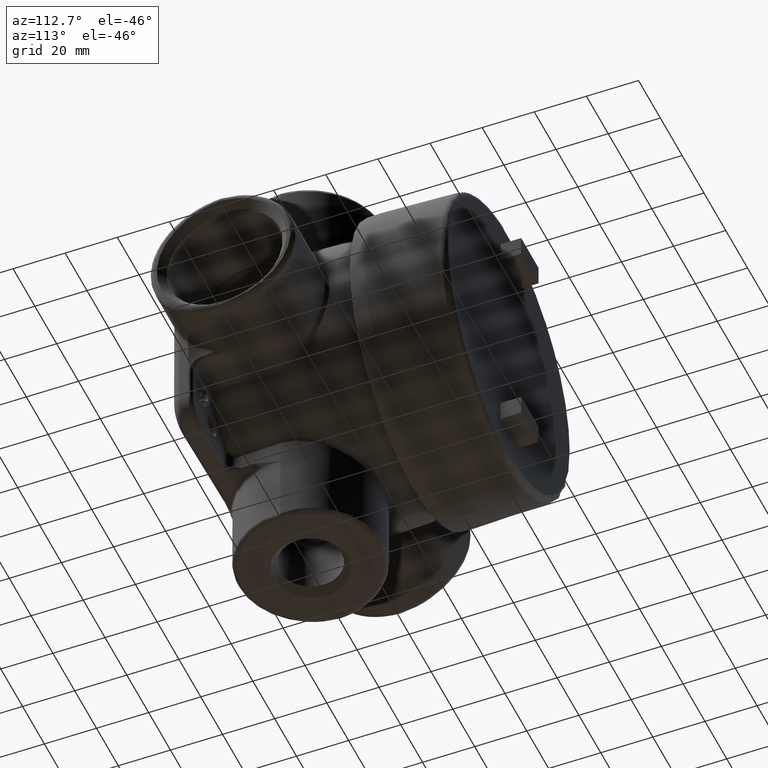
[diagram: clean part render]
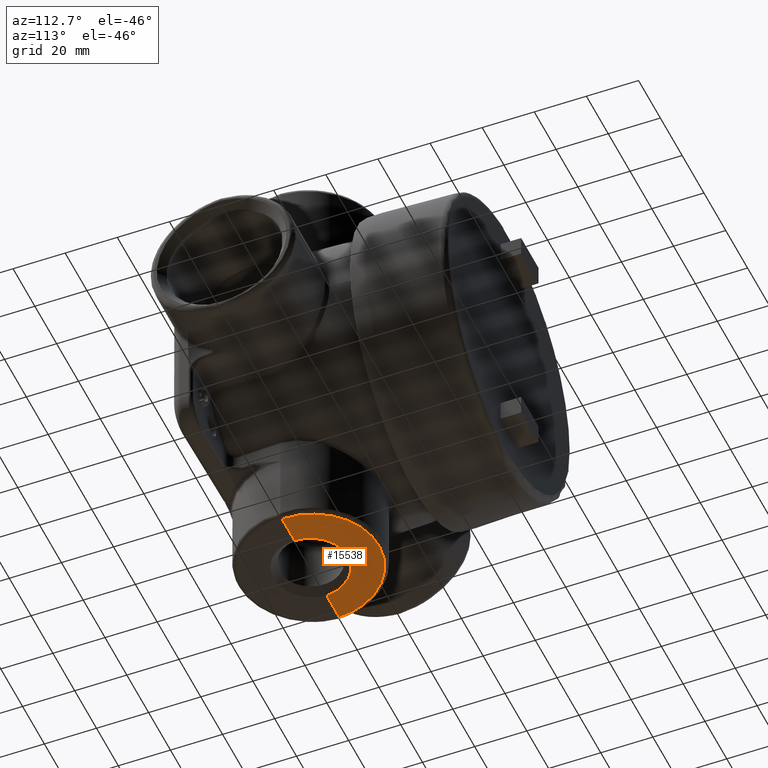
[diagram: same view with one face highlighted and labeled with its STEP entity id]
A machine part, auxiliary view. The second image highlights one B-rep face of the part: STEP entity #15538.
In plain terms, the highlighted planar face has unit normal (-0, -0.0349, 0.9994).
Its self-contained STEP definition (entity closure, byte-faithful):
#268=PLANE('',#16713);
#940=LINE('',#53334,#2259);
#941=LINE('',#53337,#2260);
#2259=VECTOR('',#18526,0.393700787401575);
#2260=VECTOR('',#18529,0.393700787401575);
#3604=FACE_OUTER_BOUND('',#4543,.T.);
#4543=EDGE_LOOP('',(#11595,#11596,#11597,#11598,#11599));
#5914=ELLIPSE('',#16706,0.58056120216713,0.579853662066613);
#5915=ELLIPSE('',#16709,0.58056120216713,0.579853662066613);
#5917=ELLIPSE('',#16714,1.03212874494423,1.0315);
#6844=VERTEX_POINT('',#53313);
#6845=VERTEX_POINT('',#53314);
#6846=VERTEX_POINT('',#53316);
#6851=VERTEX_POINT('',#53333);
#6852=VERTEX_POINT('',#53335);
#8623=EDGE_CURVE('',#6846,#6844,#5914,.T.);
#8627=EDGE_CURVE('',#6845,#6846,#5915,.T.);
#8632=EDGE_CURVE('',#6844,#6851,#940,.T.);
#8633=EDGE_CURVE('',#6852,#6851,#5917,.T.);
#8634=EDGE_CURVE('',#6852,#6845,#941,.T.);
#11595=ORIENTED_EDGE('',*,*,#8627,.T.);
#11596=ORIENTED_EDGE('',*,*,#8623,.T.);
#11597=ORIENTED_EDGE('',*,*,#8632,.T.);
#11598=ORIENTED_EDGE('',*,*,#8633,.F.);
#11599=ORIENTED_EDGE('',*,*,#8634,.T.);
#15538=ADVANCED_FACE('',(#3604),#268,.F.);
#16706=AXIS2_PLACEMENT_3D('',#53317,#18506,#18507);
#16709=AXIS2_PLACEMENT_3D('',#53323,#18513,#18514);
#16713=AXIS2_PLACEMENT_3D('',#53332,#18524,#18525);
#16714=AXIS2_PLACEMENT_3D('',#53336,#18527,#18528);
#18506=DIRECTION('center_axis',(-6.11950388703081E-17,-0.034899496702501,
0.999390827019096));
#18507=DIRECTION('ref_axis',(-6.47920035178616E-14,0.999390827019096,0.0348994967025009));
#18513=DIRECTION('center_axis',(-6.11950388703081E-17,-0.034899496702501,
0.999390827019096));
#18514=DIRECTION('ref_axis',(-6.47920035178616E-14,0.999390827019096,0.0348994967025009));
#18524=DIRECTION('center_axis',(-6.11950388703081E-17,-0.034899496702501,
0.999390827019096));
#18525=DIRECTION('ref_axis',(1.,0.,6.12323399573677E-17));
#18526=DIRECTION('',(-1.,0.,-6.12323399573677E-17));
#18527=DIRECTION('center_axis',(-6.11950388703081E-17,-0.034899496702501,
0.999390827019096));
#18528=DIRECTION('ref_axis',(-2.13697784642857E-18,0.999390827019096,0.034899496702501));
#18529=DIRECTION('',(-1.,0.,-6.12323399573677E-17));
#53313=CARTESIAN_POINT('',(-0.5795,-2.4056,-3.25));
#53314=CARTESIAN_POINT('',(0.579500000000001,-2.4056,-3.25));
#53316=CARTESIAN_POINT('',(3.27041927712303E-16,-1.84565375379162,-3.23044624620839));
#53317=CARTESIAN_POINT('Origin',(3.49676543189026E-16,-2.42586129376063,
-3.25070753996902));
#53323=CARTESIAN_POINT('Origin',(3.49676543189026E-16,-2.42586129376063,
-3.25070753996902));
#53332=CARTESIAN_POINT('Origin',(2.0402459023587E-16,-2.4056,-3.25));
#53333=CARTESIAN_POINT('',(-1.03149769378592,-2.4056,-3.25));
#53334=CARTESIAN_POINT('',(1.99005104861445E-16,-2.4056,-3.25));
#53335=CARTESIAN_POINT('',(1.03149769378592,-2.4056,-3.25));
#53336=CARTESIAN_POINT('Origin',(1.99000440804521E-16,-2.40341878145609,
-3.24992383017002));
#53337=CARTESIAN_POINT('',(1.99005104861445E-16,-2.4056,-3.25));